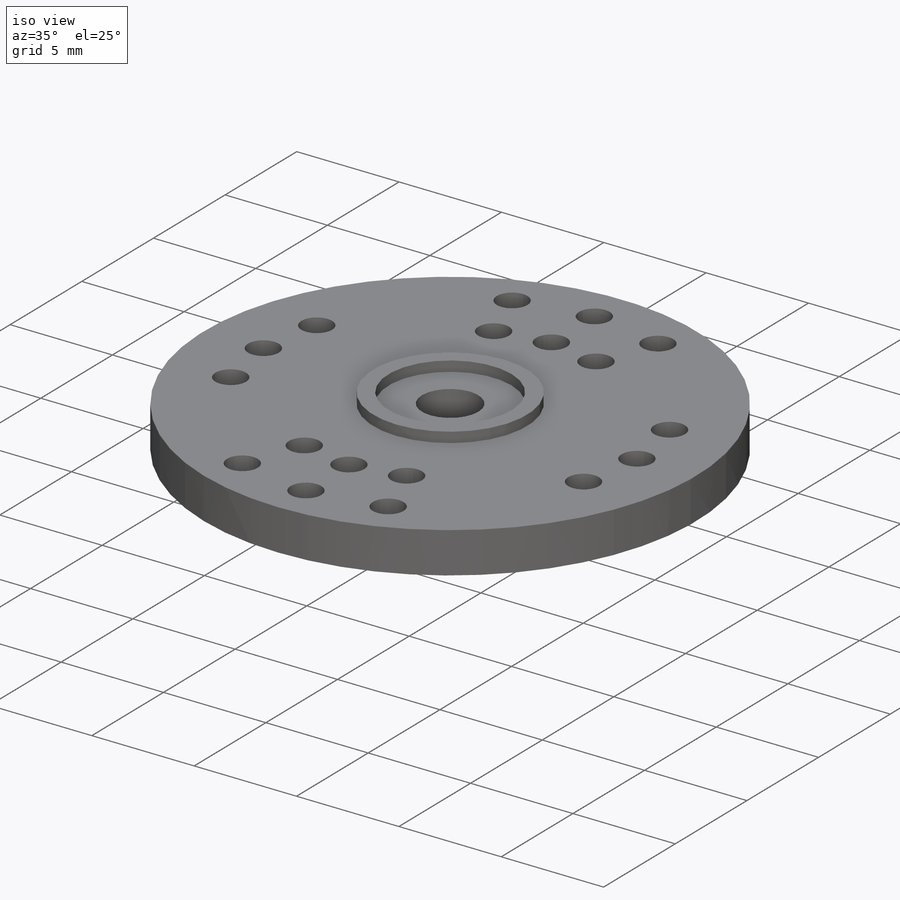
[diagram: iso view]
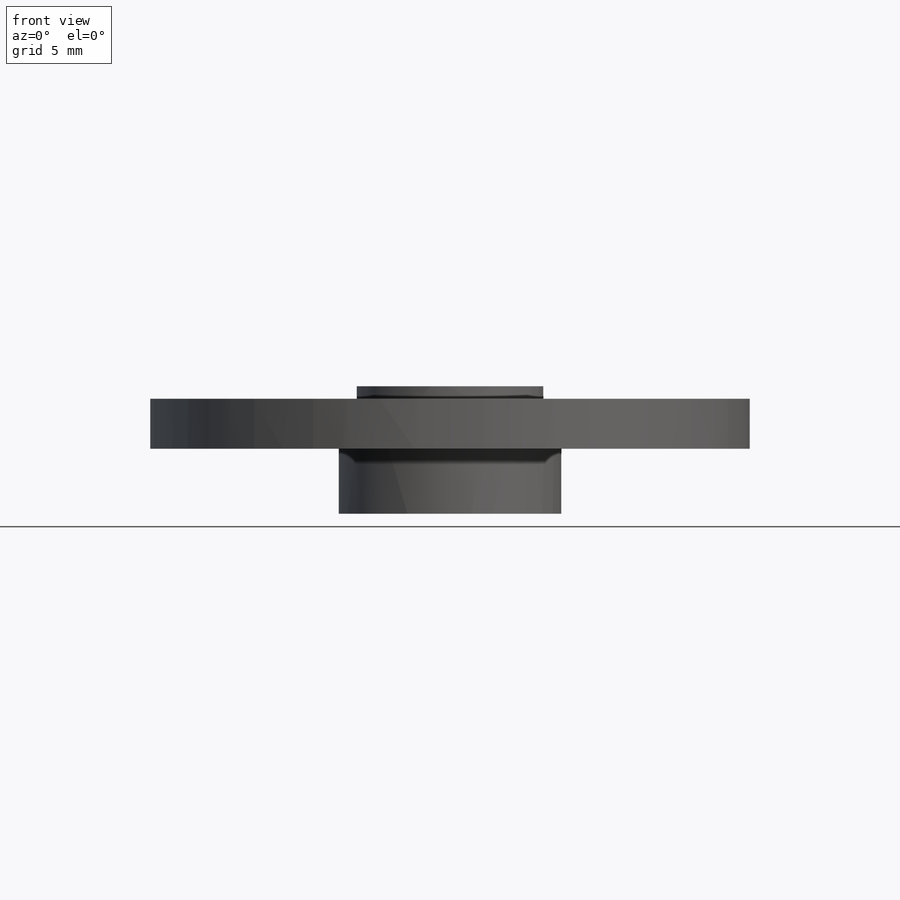
[diagram: front view]
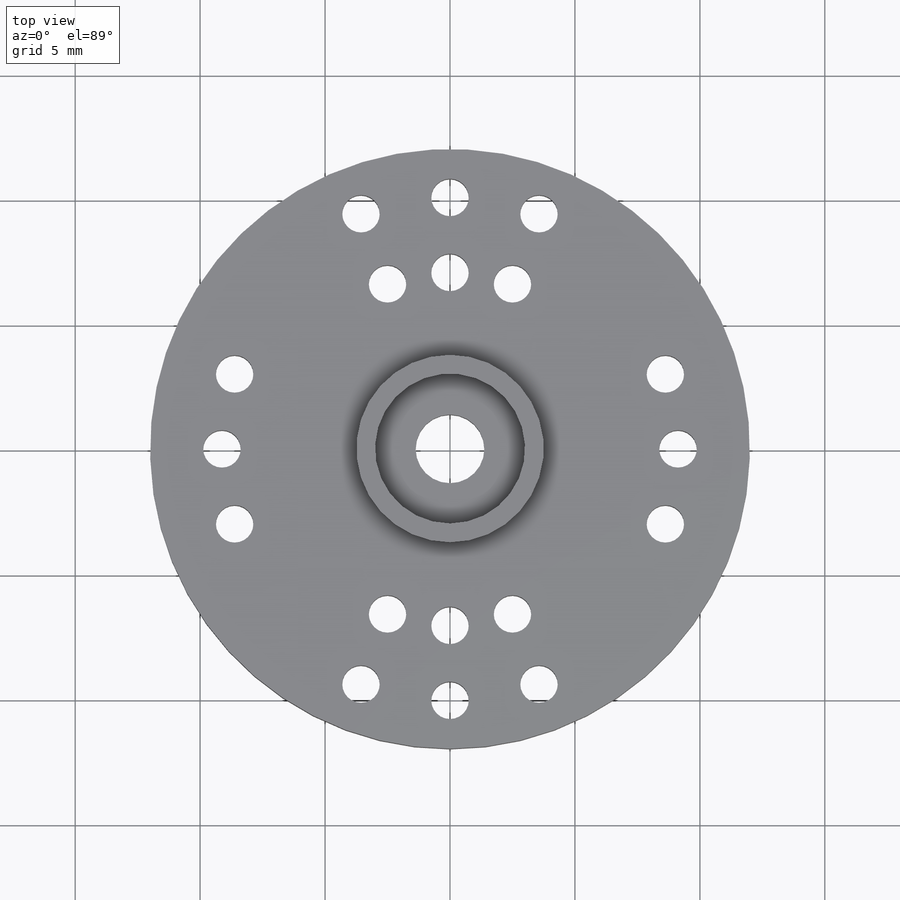
[diagram: top view]
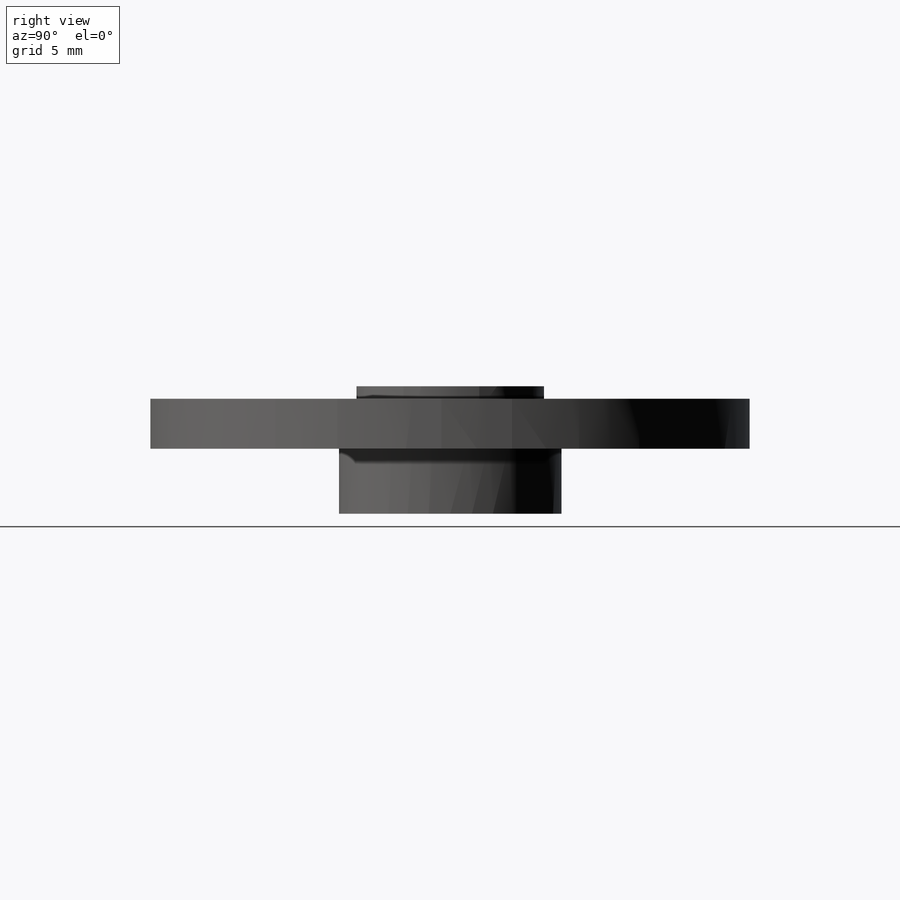
[diagram: right view]
SOLIDWORKS PART (.sldprt)
format: sldprt  version: not decoded by parser v0  size: 189,952 bytes
history: native  units: mm
features: sketch x6, extrude x2, material x1, plane x1, revolve x1, cut_revolve x1, hole x1 (+11 scaffold rows collapsed)
feature tree (24):
  scaffold x11  (default folders/planes/origin — collapsed)
  material  "Delrin 2700 NC010, Low Viscosity Acetal Copolymer (SS)"
  plane  "Plane1"
  sketch  "Sketch1"
  revolve  "Revolve1"  Angle=360deg
  sketch  "Sketch2"
  extrude  "Boss-Extrude1"  Depth=2.6mm
  sketch  "Sketch3"
  extrude  "Boss-Extrude2"  Depth=0.5mm
  sketch  "Sketch4"
  cut_revolve  "Cut-Revolve1"  Angle=360deg
  hole  "Ø1.5 (1.5) Diameter Hole1"  Diameter=1.5mm Depth=2.5mm
  sketch  "Sketch6"
  sketch  "Sketch5"  dims[hole-wizard template sketch: 59 standard entries collapsed; hole parameters kept: c18.Thru Hole Dia.=1.5mm c18.Thru Hole Depth=2.5mm]
decode coverage: 6 of 11 modeling features carry decoded parameters
note: ~ marks probable driven/reference dimensions
note: suppression state not decoded; provenance and decode notes live in map.json
